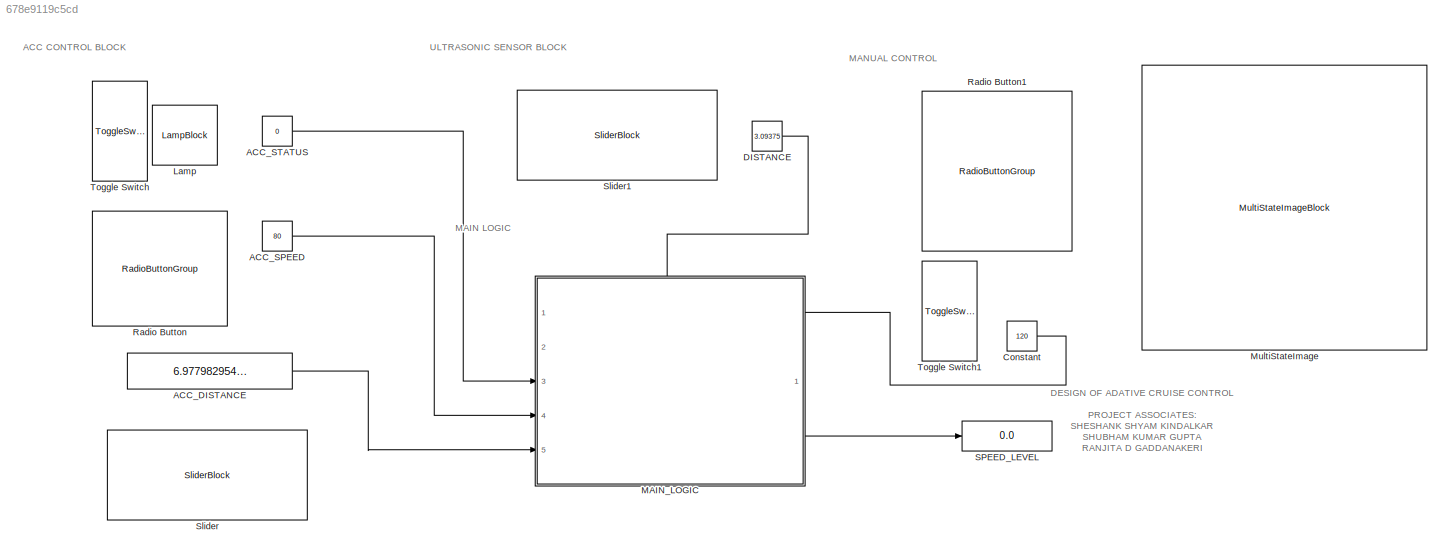
MODEL slx_678e9119c5cd
KIND model
CONFIG AbsTol = auto
CONFIG EnableMultiTasking = off
CONFIG FixedStep = auto
CONFIG MaxStep = auto
CONFIG MinStep = auto
CONFIG RelTol = 1e-3
CONFIG SampleTimeConstraint = Unconstrained
CONFIG Solver = VariableStepAuto
CONFIG SolverName = VariableStepAuto
CONFIG StartTime = 0.0
CONFIG StopTime = inf
BLOCK [Constant] ACC_DISTANCE
  OutMax = [10]
  OutMin = [0]
  Value = 6.977982954545454
BLOCK [Constant] ACC_SPEED
  Value = 80
BLOCK [Constant] ACC_STATUS
  Value = 0
BLOCK [Constant] Constant
  Value = 120
BLOCK [Constant] DISTANCE
  Value = 3.09375
BLOCK [LampBlock] Lamp
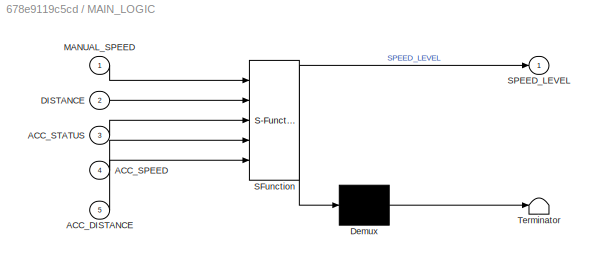
BLOCK [SubSystem] MAIN_LOGIC
  ErrorFcn = Stateflow.Translate.translate
  PermitHierarchicalResolution = ExplicitOnly
  PortSchema = {"entries":[{"content":{"sides":[{"content":{"connectorIds":["In3","In4","In5"]},"type":"ConnectorPlacement.EquallySpacedRectSide","uuid":"9577933f-3cd5-4877-b3f1-1cabc5f66bc2"},{"content":{"connectorIds":["In1","Out1"],"side":"RIGHT"},"type":"ConnectorPlacement.EquallySpacedRectSide","uuid":"2a6dc85d-fd72-47ef-ac66-14217eaecbf8"},{"content":{"connectorIds":["In2"],"side":"TOP"},"type":"ConnectorP...<+265ch>
  Ports = [5, 1]
  RequestExecContextInheritance = off
  SFBlockType = Chart
  TreatAsAtomicUnit = on
BLOCK [Demux] MAIN_LOGIC/ Demux 
  Outputs = 1
  Ports = [1, 1]
BLOCK [S-Function] MAIN_LOGIC/ SFunction 
  EnableBusSupport = on
  FunctionName = sf_sfun
  PortCounts = [5 2]
  Ports = [5, 2]
  SFcnIsStateOwnerBlock = off
  SFunctionDeploymentMode = off
  Tag = Stateflow S-Function 3
BLOCK [Terminator] MAIN_LOGIC/ Terminator 
BLOCK [Inport] MAIN_LOGIC/ACC_DISTANCE
  Port = 5
BLOCK [Inport] MAIN_LOGIC/ACC_SPEED
  Port = 4
BLOCK [Inport] MAIN_LOGIC/ACC_STATUS
  Port = 3
BLOCK [Inport] MAIN_LOGIC/DISTANCE
  Port = 2
BLOCK [Inport] MAIN_LOGIC/MANUAL_SPEED
BLOCK [Outport] MAIN_LOGIC/SPEED_LEVEL
BLOCK [MultiStateImageBlock] MultiStateImage
BLOCK [RadioButtonGroup] Radio Button
  ButtonGroupName = Group
  SelectedLabel = 80 KMPH
BLOCK [RadioButtonGroup] Radio Button1
  ButtonGroupName = Group
  SelectedLabel = 120 KMPH
BLOCK [Display] SPEED_LEVEL
  Decimation = 1
  Ports = [1]
BLOCK [SliderBlock] Slider
  ScaleMax = 10
  ScaleMin = 5
  TickInterval = 1
BLOCK [SliderBlock] Slider1
  ScaleMax = 20
BLOCK [ToggleSwitchBlock] Toggle Switch
BLOCK [ToggleSwitchBlock] Toggle Switch1
ANNOTATION (root): ACC CONTROL BLOCK
ANNOTATION (root): DESIGN OF ADATIVE CRUISE CONTROL PROJECT ASSOCIATES: SHESHANK SHYAM KINDALKAR SHUBHAM KUMAR GUPTA RANJITA D GADDANAKERI PRIYANKA D INAMATI ASSUMPTION : VECHICAL TO BE AUTOMATIC
ANNOTATION (root): MAIN LOGIC
ANNOTATION (root): MANUAL CONTROL
ANNOTATION (root): ULTRASONIC SENSOR BLOCK
LINE ACC_DISTANCE:1 -> MAIN_LOGIC:5
LINE ACC_SPEED:1 -> MAIN_LOGIC:4
LINE ACC_STATUS:1 -> MAIN_LOGIC:3
LINE Constant:1 -> MAIN_LOGIC:1
LINE DISTANCE:1 -> MAIN_LOGIC:2
LINE MAIN_LOGIC:1 -> SPEED_LEVEL:1
CHART MAIN_LOGIC states=10 transitions=35
  STATE_LABEL 'ADAPTIVE_CONTROL_ACTIVE\nentry:\n'
  STATE_LABEL 'ZERO_GEAR_STATE\nentry:\nSPEED_LEVEL = 0;\n'
  STATE_LABEL 'FRIST_GEAR_STATE\nentry:\nSPEED_LEVEL = 1;\n'
  STATE_LABEL 'SECOND_GEAR_STATE\nentry:\nSPEED_LEVEL = 2;'
  STATE_LABEL 'BREAKING_STATE\nentry:\nSPEED_LEVEL = 3;'
  STATE_LABEL '[ACC_SPEED == 80]'
  STATE_LABEL '[DISTANCE >= 0.20*ACC_DISTANCE]'
  STATE_LABEL '[DISTANCE >= 0.75*ACC_DISTANCE]'
  STATE_LABEL '[ACC_SPEED == 30 || ACC_SPEED == 50]'
  STATE_LABEL '[ACC_SPEED == 80]'
  STATE_LABEL '[ACC_SPEED == 80]'
  STATE_LABEL '[ACC_SPEED == 100]'
  STATE_LABEL '[ACC_SPEED == 30 || ACC_SPEED == 50]'
  STATE_LABEL '[DISTANCE >= 0.50*ACC_DISTANCE]'
  STATE_LABEL '[ACC_SPEED == 100]'
  STATE_LABEL '[DISTANCE >= 0.50*ACC_DISTANCE]'
  STATE_LABEL '[ACC_SPEED == 30 || ACC_SPEED == 50]'
  STATE_LABEL '[DISTANCE >= 0.50*ACC_DISTANCE]'
  STATE_LABEL '[DISTANCE >= 0.20*ACC_DISTANCE]'
  STATE_LABEL '[DISTANCE >= 0.75*ACC_DISTANCE]'
  STATE_LABEL '[DISTANCE >= 0.20*ACC_DISTANCE]'
  STATE_LABEL '[DISTANCE >= 0.75*ACC_DISTANCE]'
  STATE_LABEL '[ACC_SPEED == 100]'
  STATE_LABEL 'ZERO_GEAR_STATE\nentry:\nSPEED_LEVEL = 0;\n'
  STATE_LABEL 'FRIST_GEAR_STATE\nentry:\nSPEED_LEVEL = 1;\n'
  STATE_LABEL 'SECOND_GEAR_STATE\nentry:\nSPEED_LEVEL = 2;'
  STATE_LABEL 'BREAKING_STATE\nentry:\nSPEED_LEVEL = 3;'
  STATE_LABEL 'ADAPTIVE_CONTROL_INACTIVE\nentry:\n'
  STATE_LABEL 'SPEED_LEVEL_0\nentry:\nSPEED_LEVEL = 0;\n'
  STATE_LABEL 'SPEED_LEVEL_1\nentry:\nSPEED_LEVEL = 1;\n'
  STATE_LABEL 'SPEED_LEVEL_2\nentry:\nSPEED_LEVEL = 2;'
  STATE_LABEL 'BREAKING_STATE\nentry:\nSPEED_LEVEL = 3;\n'
  STATE_LABEL '[MANUAL_SPEED == 120]'
  STATE_LABEL '[(MANUAL_SPEED == 40) || (MANUAL_SPEED == 80)]'
  STATE_LABEL '[MANUAL_SPEED == 160]'
  STATE_LABEL '[MANUAL_SPEED == 120]'
  STATE_LABEL '[(MANUAL_SPEED == 40) || (MANUAL_SPEED == 80)]'
  STATE_LABEL '[MANUAL_SPEED == 160]'
  STATE_LABEL '[(MANUAL_SPEED == 40) || (MANUAL_SPEED == 80)]'
  STATE_LABEL '[MANUAL_SPEED == 160]'
CHART  states=0 transitions=0
